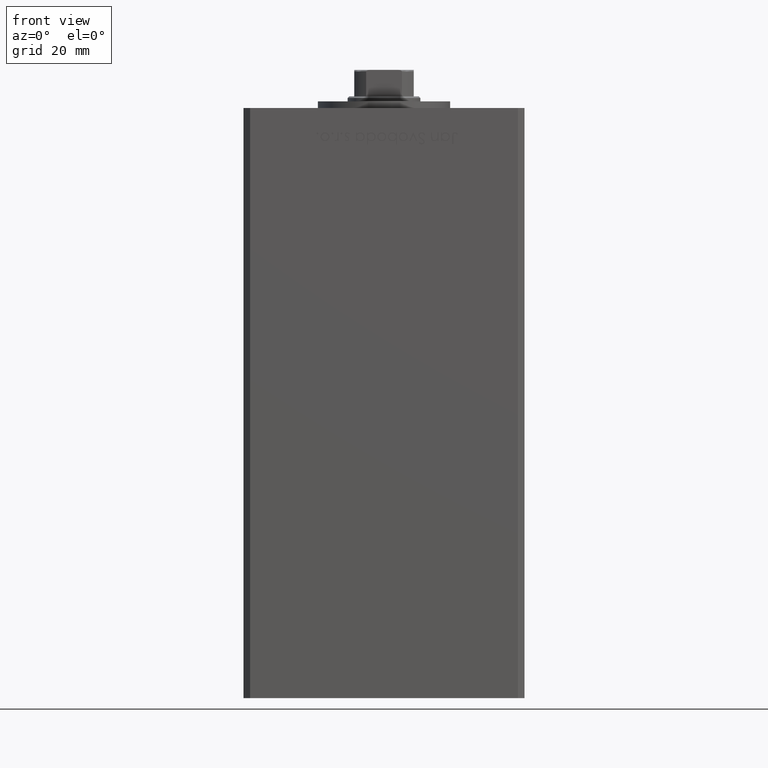
[diagram: clean part render]
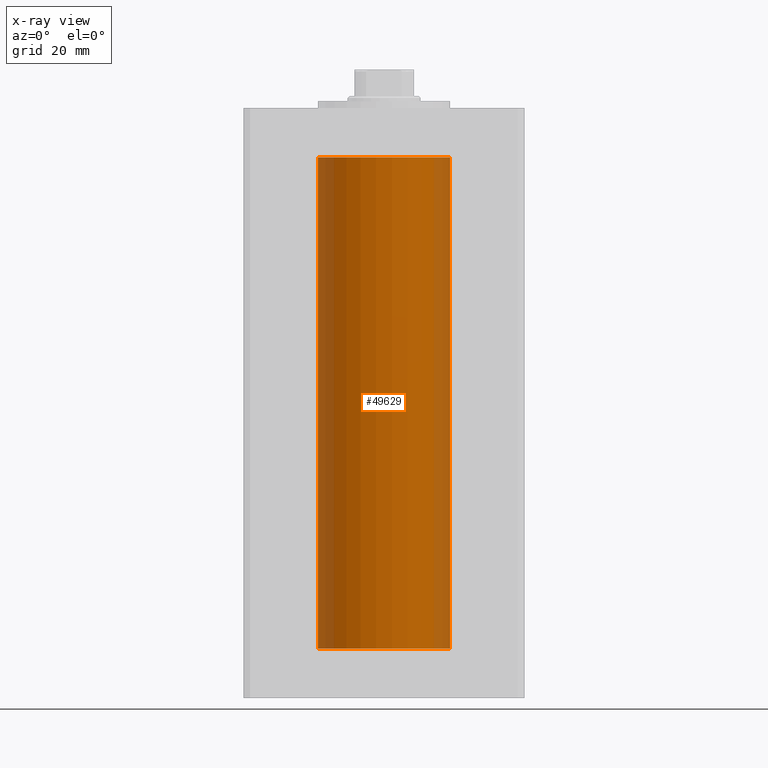
[diagram: x-ray — body ghosted, one internal face saturated and labeled with its STEP entity id]
A machine part, front view, then the same camera in x-ray: the body is ghosted and one INTERNAL B-rep face — a face not visible from any outside direction — is saturated and labeled: STEP entity #49629.
In plain terms, the highlighted cylindrical surface (partial cylindrical patch) has radius 20 mm, axis along (-0, -0, -1).
Its self-contained STEP definition (entity closure, byte-faithful):
#1973 = CIRCLE ( 'NONE', #39003, 20.00000000000000000 ) ;
#3036 = VERTEX_POINT ( 'NONE', #27778 ) ;
#3400 = LINE ( 'NONE', #51157, #42191 ) ;
#3923 = CARTESIAN_POINT ( 'NONE',  ( 0.000000000000000000, 0.000000000000000000, 0.000000000000000000 ) ) ;
#8422 = EDGE_CURVE ( 'NONE', #45177, #3036, #1973, .T. ) ;
#11456 = ORIENTED_EDGE ( 'NONE', *, *, #19536, .T. ) ;
#14723 = FACE_OUTER_BOUND ( 'NONE', #51111, .T. ) ;
#15040 = DIRECTION ( 'NONE',  ( -0.000000000000000000, -0.000000000000000000, -1.000000000000000000 ) ) ;
#15899 = LINE ( 'NONE', #28536, #18607 ) ;
#17394 = CARTESIAN_POINT ( 'NONE',  ( -20.00000000000000000, 0.000000000000000000, 0.000000000000000000 ) ) ;
#18607 = VECTOR ( 'NONE', #28016, 1000.000000000000000 ) ;
#18833 = DIRECTION ( 'NONE',  ( 1.000000000000000000, 0.000000000000000000, 0.000000000000000000 ) ) ;
#19188 = CARTESIAN_POINT ( 'NONE',  ( 0.000000000000000000, 0.000000000000000000, 148.5000000000000000 ) ) ;
#19478 = VERTEX_POINT ( 'NONE', #25453 ) ;
#19536 = EDGE_CURVE ( 'NONE', #49624, #19478, #44377, .T. ) ;
#19596 = CARTESIAN_POINT ( 'NONE',  ( 0.000000000000000000, 0.000000000000000000, 148.5000000000000000 ) ) ;
#20624 = AXIS2_PLACEMENT_3D ( 'NONE', #19188, #23406, #27096 ) ;
#21658 = AXIS2_PLACEMENT_3D ( 'NONE', #19596, #27257, #18833 ) ;
#23347 = ORIENTED_EDGE ( 'NONE', *, *, #8422, .F. ) ;
#23406 = DIRECTION ( 'NONE',  ( -0.000000000000000000, -0.000000000000000000, -1.000000000000000000 ) ) ;
#25453 = CARTESIAN_POINT ( 'NONE',  ( 20.00000000000000000, 2.449293598294706513E-15, 148.5000000000000000 ) ) ;
#27047 = ORIENTED_EDGE ( 'NONE', *, *, #38725, .T. ) ;
#27096 = DIRECTION ( 'NONE',  ( -1.000000000000000000, 0.000000000000000000, 0.000000000000000000 ) ) ;
#27257 = DIRECTION ( 'NONE',  ( -0.000000000000000000, 0.000000000000000000, 1.000000000000000000 ) ) ;
#27778 = CARTESIAN_POINT ( 'NONE',  ( 20.00000000000000000, 2.449293598294706513E-15, 0.000000000000000000 ) ) ;
#28016 = DIRECTION ( 'NONE',  ( -0.000000000000000000, -0.000000000000000000, -1.000000000000000000 ) ) ;
#28536 = CARTESIAN_POINT ( 'NONE',  ( -20.00000000000000000, 0.000000000000000000, 148.5000000000000000 ) ) ;
#35690 = EDGE_CURVE ( 'NONE', #49624, #45177, #15899, .T. ) ;
#35849 = DIRECTION ( 'NONE',  ( 1.000000000000000000, 0.000000000000000000, 0.000000000000000000 ) ) ;
#36746 = ORIENTED_EDGE ( 'NONE', *, *, #35690, .F. ) ;
#38725 = EDGE_CURVE ( 'NONE', #19478, #3036, #3400, .T. ) ;
#39003 = AXIS2_PLACEMENT_3D ( 'NONE', #3923, #51675, #35849 ) ;
#42191 = VECTOR ( 'NONE', #15040, 1000.000000000000000 ) ;
#43169 = CARTESIAN_POINT ( 'NONE',  ( -20.00000000000000000, 0.000000000000000000, 148.5000000000000000 ) ) ;
#44377 = CIRCLE ( 'NONE', #21658, 20.00000000000000000 ) ;
#45177 = VERTEX_POINT ( 'NONE', #17394 ) ;
#46871 = CYLINDRICAL_SURFACE ( 'NONE', #20624, 20.00000000000000000 ) ;
#49624 = VERTEX_POINT ( 'NONE', #43169 ) ;
#49629 = ADVANCED_FACE ( 'NONE', ( #14723 ), #46871, .F. ) ;
#51111 = EDGE_LOOP ( 'NONE', ( #11456, #27047, #23347, #36746 ) ) ;
#51157 = CARTESIAN_POINT ( 'NONE',  ( 20.00000000000000000, 2.449293598294706513E-15, 148.5000000000000000 ) ) ;
#51675 = DIRECTION ( 'NONE',  ( -0.000000000000000000, 0.000000000000000000, 1.000000000000000000 ) ) ;